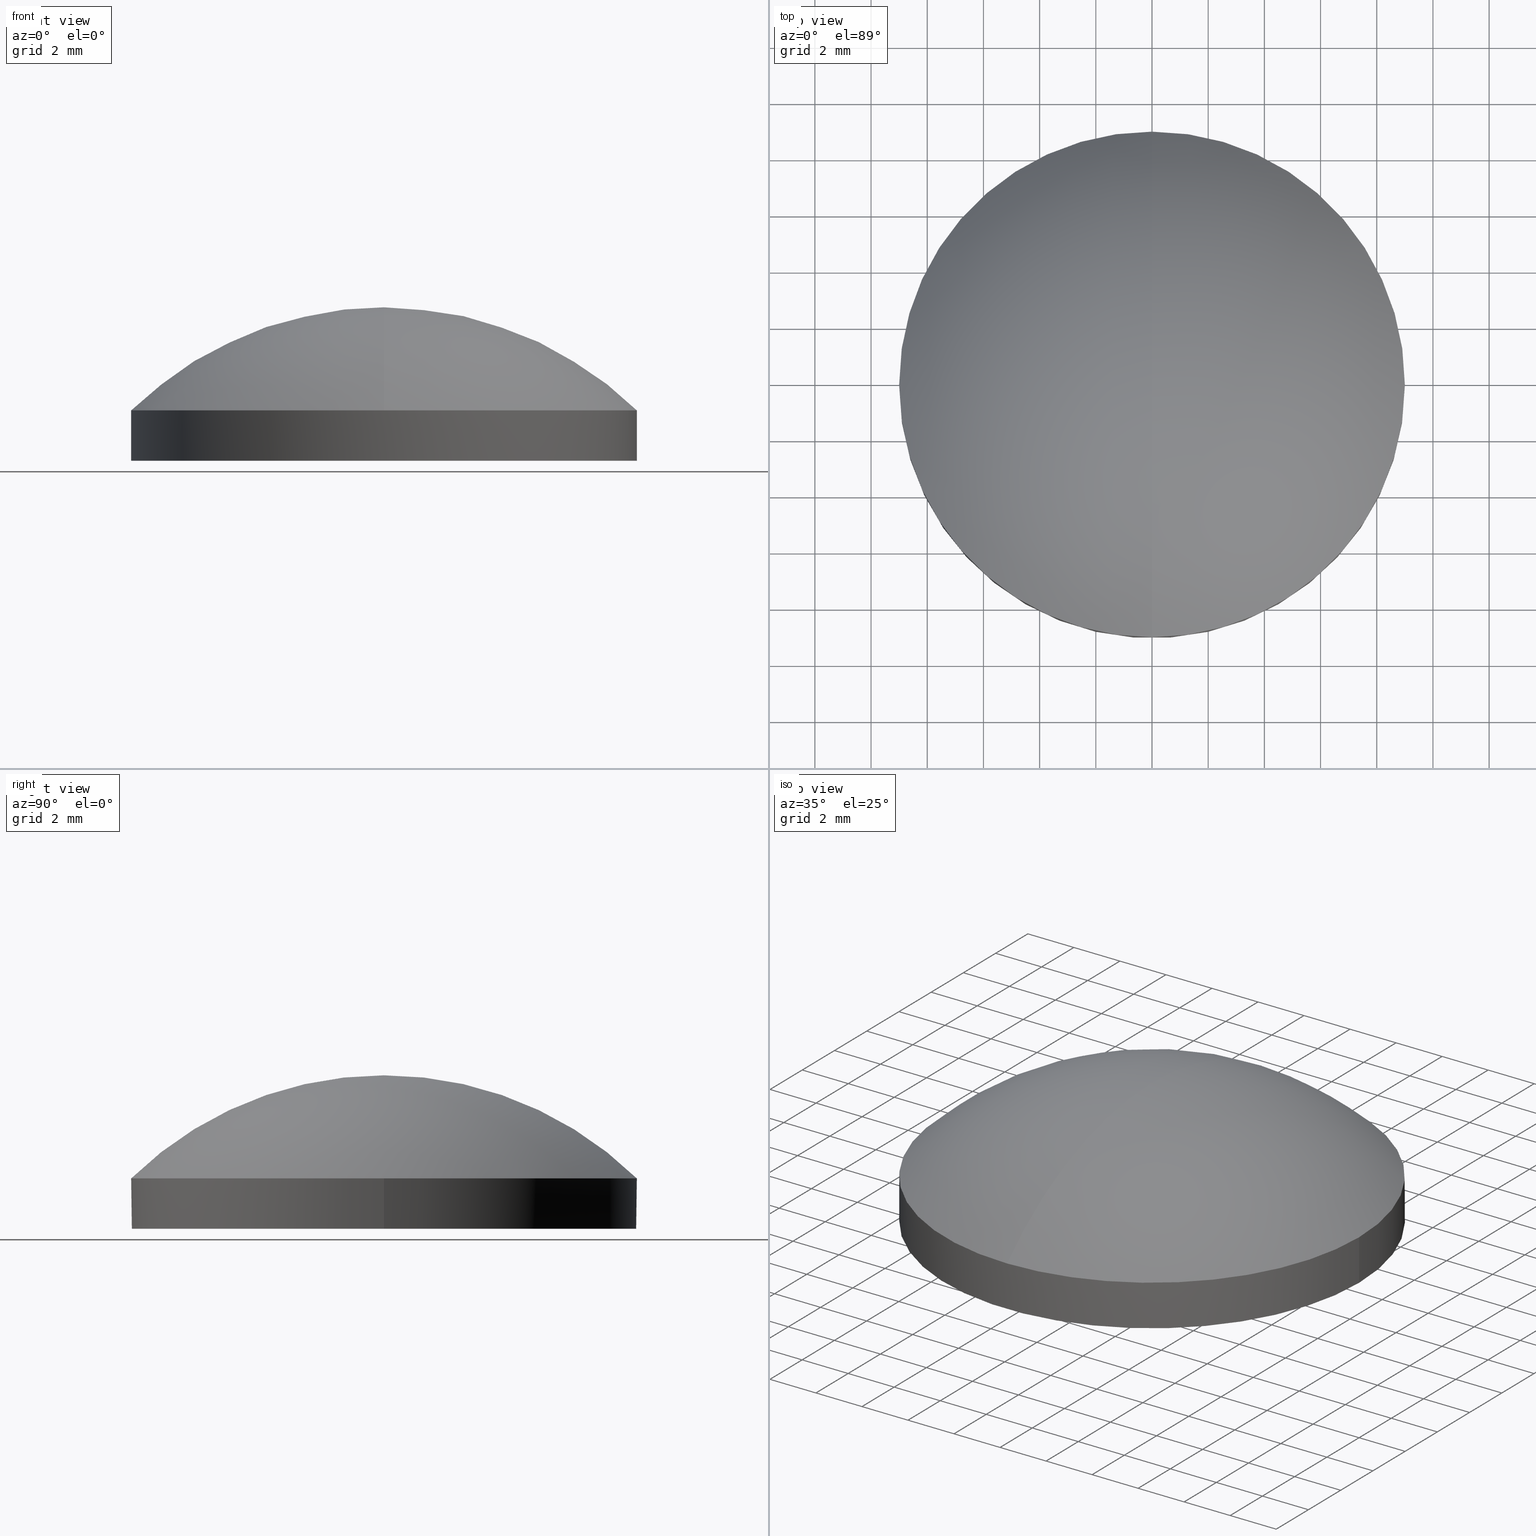
[diagram: canonical four-view strip — front | top / right | iso, engineering-drawing reading convention]
A machine part, canonical four-view strip (front | top / right | iso — engineering-drawing reading convention). The complete STEP part file that produces these views, byte-faithful:
ISO-10303-21;
HEADER;
FILE_DESCRIPTION (( 'STEP AP214' ),
    '1' );
FILE_NAME ('4485-E0W.STEP',
    '2009-12-21T17:06:16',
    ( ' ' ),
    ( ' ' ),
    'SwSTEP 2.0',
    'SolidWorks 2009',
    '' );
FILE_SCHEMA (( 'AUTOMOTIVE_DESIGN' ));
ENDSEC;

DATA;
#1 = VERTEX_POINT ( 'NONE', #91 ) ;
#2 = VERTEX_POINT ( 'NONE', #76 ) ;
#3 = EDGE_CURVE ( 'NONE', #23, #9, #68, .T. ) ;
#4 = VERTEX_POINT ( 'NONE', #93 ) ;
#5 = ORIENTED_EDGE ( 'NONE', *, *, #27, .F. ) ;
#6 = ORIENTED_EDGE ( 'NONE', *, *, #60, .T. ) ;
#7 = ORIENTED_EDGE ( 'NONE', *, *, #3, .F. ) ;
#8 = ADVANCED_FACE ( 'NONE', ( #81 ), #92, .T. ) ;
#9 = VERTEX_POINT ( 'NONE', #64 ) ;
#10 = EDGE_CURVE ( 'NONE', #2, #32, #63, .T. ) ;
#11 = EDGE_LOOP ( 'NONE', ( #18, #24, #6, #17 ) ) ;
#12 = ORIENTED_EDGE ( 'NONE', *, *, #13, .F. ) ;
#13 = EDGE_CURVE ( 'NONE', #2, #1, #100, .T. ) ;
#14 = ORIENTED_EDGE ( 'NONE', *, *, #3, .T. ) ;
#15 = EDGE_LOOP ( 'NONE', ( #42, #30 ) ) ;
#16 = ORIENTED_EDGE ( 'NONE', *, *, #25, .F. ) ;
#17 = ORIENTED_EDGE ( 'NONE', *, *, #21, .F. ) ;
#18 = ORIENTED_EDGE ( 'NONE', *, *, #27, .T. ) ;
#19 = EDGE_CURVE ( 'NONE', #32, #2, #82, .T. ) ;
#20 = ORIENTED_EDGE ( 'NONE', *, *, #21, .T. ) ;
#21 = EDGE_CURVE ( 'NONE', #9, #59, #124, .T. ) ;
#22 = EDGE_CURVE ( 'NONE', #1, #4, #126, .T. ) ;
#23 = VERTEX_POINT ( 'NONE', #110 ) ;
#24 = ORIENTED_EDGE ( 'NONE', *, *, #22, .T. ) ;
#25 = EDGE_CURVE ( 'NONE', #32, #23, #123, .T. ) ;
#26 = ORIENTED_EDGE ( 'NONE', *, *, #60, .F. ) ;
#27 = EDGE_CURVE ( 'NONE', #9, #1, #120, .T. ) ;
#28 = ORIENTED_EDGE ( 'NONE', *, *, #34, .T. ) ;
#29 = EDGE_LOOP ( 'NONE', ( #26, #28, #14, #20 ) ) ;
#30 = ORIENTED_EDGE ( 'NONE', *, *, #10, .F. ) ;
#31 = ORIENTED_EDGE ( 'NONE', *, *, #10, .T. ) ;
#32 = VERTEX_POINT ( 'NONE', #141 ) ;
#33 = ORIENTED_EDGE ( 'NONE', *, *, #13, .T. ) ;
#34 = EDGE_CURVE ( 'NONE', #4, #23, #128, .T. ) ;
#35 = ORIENTED_EDGE ( 'NONE', *, *, #22, .F. ) ;
#36 = ADVANCED_FACE ( 'NONE', ( #129 ), #161, .T. ) ;
#37 = CARTESIAN_POINT ( 'NONE',  ( 0.0000000000000000000, 0.0000000000000000000, -2.730000000000000000 ) ) ;
#38 = ADVANCED_FACE ( 'NONE', ( #165 ), #180, .F. ) ;
#39 = EDGE_LOOP ( 'NONE', ( #12, #31, #45, #40, #35 ) ) ;
#40 = ORIENTED_EDGE ( 'NONE', *, *, #34, .F. ) ;
#41 = CLOSED_SHELL ( 'NONE', ( #57, #8, #44, #36, #38 ) ) ;
#42 = ORIENTED_EDGE ( 'NONE', *, *, #19, .F. ) ;
#43 = AXIS2_PLACEMENT_3D ( 'NONE', #37, #48, #46 ) ;
#44 = ADVANCED_FACE ( 'NONE', ( #149 ), #212, .T. ) ;
#45 = ORIENTED_EDGE ( 'NONE', *, *, #25, .T. ) ;
#46 = DIRECTION ( 'NONE',  ( 1.000000000000000000, 0.0000000000000000000, 0.0000000000000000000 ) ) ;
#47 = UNCERTAINTY_MEASURE_WITH_UNIT (LENGTH_MEASURE( 1.000000000000000100E-005 ), #105, 'distance_accuracy_value', 'NONE');
#48 = DIRECTION ( 'NONE',  ( -0.0000000000000000000, -0.0000000000000000000, 1.000000000000000000 ) ) ;
#49 =( NAMED_UNIT ( * ) SI_UNIT ( $, .STERADIAN. ) SOLID_ANGLE_UNIT ( ) );
#50 = PRODUCT_RELATED_PRODUCT_CATEGORY ( 'part', '', ( #256 ) ) ;
#51 = PRODUCT_DEFINITION_FORMATION_WITH_SPECIFIED_SOURCE ( 'ANY', '', #256, .NOT_KNOWN. ) ;
#52 = PRODUCT_DEFINITION ( 'UNKNOWN', '', #51, #253 ) ;
#53 =( GEOMETRIC_REPRESENTATION_CONTEXT ( 3 ) GLOBAL_UNCERTAINTY_ASSIGNED_CONTEXT ( ( #47 ) ) GLOBAL_UNIT_ASSIGNED_CONTEXT ( ( #105, #108, #49 ) ) REPRESENTATION_CONTEXT ( 'NONE', 'WORKASPACE' ) );
#54 =( LENGTH_UNIT ( ) NAMED_UNIT ( * ) SI_UNIT ( .MILLI., .METRE. ) );
#55 = MANIFOLD_SOLID_BREP ( 'NONE', #41 ) ;
#56 = EDGE_LOOP ( 'NONE', ( #58, #33, #5, #7, #16 ) ) ;
#57 = ADVANCED_FACE ( 'NONE', ( #189 ), #235, .T. ) ;
#58 = ORIENTED_EDGE ( 'NONE', *, *, #19, .T. ) ;
#59 = VERTEX_POINT ( 'NONE', #216 ) ;
#60 = EDGE_CURVE ( 'NONE', #4, #59, #231, .T. ) ;
#61 =( NAMED_UNIT ( * ) PLANE_ANGLE_UNIT ( ) SI_UNIT ( $, .RADIAN. ) );
#62 = AXIS2_PLACEMENT_3D ( 'NONE', #73, #79, #78 ) ;
#63 = CIRCLE ( 'NONE', #99, 9.000000000000001800 ) ;
#64 = CARTESIAN_POINT ( 'NONE',  ( 0.0000000000000000000, 9.000000000000001800, -0.9401684798035601100 ) ) ;
#65 = DIRECTION ( 'NONE',  ( -0.0000000000000000000, -0.0000000000000000000, 1.000000000000000000 ) ) ;
#66 = CARTESIAN_POINT ( 'NONE',  ( -9.000000000000001800, 1.102145718440139700E-015, 4.308132045400366600 ) ) ;
#67 = DIRECTION ( 'NONE',  ( 1.000000000000000000, 0.0000000000000000000, 0.0000000000000000000 ) ) ;
#68 = CIRCLE ( 'NONE', #95, 9.000000000000001800 ) ;
#69 =( GEOMETRIC_REPRESENTATION_CONTEXT ( 3 ) GLOBAL_UNCERTAINTY_ASSIGNED_CONTEXT ( ( #97 ) ) GLOBAL_UNIT_ASSIGNED_CONTEXT ( ( #74, #90, #80 ) ) REPRESENTATION_CONTEXT ( 'NONE', 'WORKASPACE' ) );
#70 = SURFACE_SIDE_STYLE ('',( #75 ) ) ;
#71 = FILL_AREA_STYLE ('',( #96 ) ) ;
#72 = MECHANICAL_DESIGN_GEOMETRIC_PRESENTATION_REPRESENTATION (  '', ( #84 ), #69 ) ;
#73 = CARTESIAN_POINT ( 'NONE',  ( 0.0000000000000000000, 0.0000000000000000000, -10.14000000000000100 ) ) ;
#74 =( LENGTH_UNIT ( ) NAMED_UNIT ( * ) SI_UNIT ( .MILLI., .METRE. ) );
#75 = SURFACE_STYLE_FILL_AREA ( #71 ) ;
#76 = CARTESIAN_POINT ( 'NONE',  ( -9.000000000000001800, 1.102145718440139700E-015, -2.730000000000000000 ) ) ;
#77 = SURFACE_STYLE_USAGE ( .BOTH. , #70 ) ;
#78 = DIRECTION ( 'NONE',  ( 0.0000000000000000000, 1.000000000000000000, 0.0000000000000000000 ) ) ;
#79 = DIRECTION ( 'NONE',  ( -1.000000000000000000, 0.0000000000000000000, 0.0000000000000000000 ) ) ;
#80 =( NAMED_UNIT ( * ) SI_UNIT ( $, .STERADIAN. ) SOLID_ANGLE_UNIT ( ) );
#81 = FACE_OUTER_BOUND ( 'NONE', #11, .T. ) ;
#82 = CIRCLE ( 'NONE', #43, 9.000000000000001800 ) ;
#83 = VECTOR ( 'NONE', #65, 1000.000000000000000 ) ;
#84 = STYLED_ITEM ( 'NONE', ( #86 ), #8 ) ;
#85 = COLOUR_RGB ( '',0.9568627450980391500, 0.9490196078431372100, 0.9607843137254902200 ) ;
#86 = PRESENTATION_STYLE_ASSIGNMENT (( #77 ) ) ;
#87 = CARTESIAN_POINT ( 'NONE',  ( 0.0000000000000000000, 0.0000000000000000000, -0.9401684798035587800 ) ) ;
#88 = DIRECTION ( 'NONE',  ( 1.000000000000000000, 0.0000000000000000000, 0.0000000000000000000 ) ) ;
#89 = PRESENTATION_LAYER_ASSIGNMENT (  '', '', ( #84 ) ) ;
#90 =( NAMED_UNIT ( * ) PLANE_ANGLE_UNIT ( ) SI_UNIT ( $, .RADIAN. ) );
#91 = CARTESIAN_POINT ( 'NONE',  ( -9.000000000000001800, 1.102145718440139700E-015, -0.9401684798035587800 ) ) ;
#92 = SPHERICAL_SURFACE ( 'NONE', #62, 12.86999999999999900 ) ;
#93 = CARTESIAN_POINT ( 'NONE',  ( -1.102145718440139700E-015, -9.000000000000001800, -0.9401684798035601100 ) ) ;
#94 =( NAMED_UNIT ( * ) SI_UNIT ( $, .STERADIAN. ) SOLID_ANGLE_UNIT ( ) );
#95 = AXIS2_PLACEMENT_3D ( 'NONE', #87, #101, #88 ) ;
#96 = FILL_AREA_STYLE_COLOUR ( '', #85 ) ;
#97 = UNCERTAINTY_MEASURE_WITH_UNIT (LENGTH_MEASURE( 1.000000000000000100E-005 ), #74, 'distance_accuracy_value', 'NONE');
#98 = DIRECTION ( 'NONE',  ( -0.0000000000000000000, -0.0000000000000000000, 1.000000000000000000 ) ) ;
#99 = AXIS2_PLACEMENT_3D ( 'NONE', #102, #98, #67 ) ;
#100 = LINE ( 'NONE', #66, #83 ) ;
#101 = DIRECTION ( 'NONE',  ( -0.0000000000000000000, -0.0000000000000000000, 1.000000000000000000 ) ) ;
#102 = CARTESIAN_POINT ( 'NONE',  ( 0.0000000000000000000, 0.0000000000000000000, -2.730000000000000000 ) ) ;
#103 = DIRECTION ( 'NONE',  ( 1.000000000000000000, 0.0000000000000000000, 0.0000000000000000000 ) ) ;
#104 = DIRECTION ( 'NONE',  ( 0.0000000000000000000, 0.0000000000000000000, -1.000000000000000000 ) ) ;
#105 =( LENGTH_UNIT ( ) NAMED_UNIT ( * ) SI_UNIT ( .MILLI., .METRE. ) );
#106 = DIRECTION ( 'NONE',  ( -0.0000000000000000000, -0.0000000000000000000, 1.000000000000000000 ) ) ;
#107 = CARTESIAN_POINT ( 'NONE',  ( 0.0000000000000000000, 0.0000000000000000000, -10.14000000000000100 ) ) ;
#108 =( NAMED_UNIT ( * ) PLANE_ANGLE_UNIT ( ) SI_UNIT ( $, .RADIAN. ) );
#109 = CARTESIAN_POINT ( 'NONE',  ( 0.0000000000000000000, 0.0000000000000000000, -0.9401684798035587800 ) ) ;
#110 = CARTESIAN_POINT ( 'NONE',  ( 9.000000000000001800, 0.0000000000000000000, -0.9401684798035587800 ) ) ;
#111 = DIRECTION ( 'NONE',  ( 1.000000000000000000, 0.0000000000000000000, 0.0000000000000000000 ) ) ;
#112 = DIRECTION ( 'NONE',  ( 1.000000000000000000, 0.0000000000000000000, 0.0000000000000000000 ) ) ;
#113 = DIRECTION ( 'NONE',  ( -0.0000000000000000000, -0.0000000000000000000, 1.000000000000000000 ) ) ;
#114 = FILL_AREA_STYLE_COLOUR ( '', #139 ) ;
#115 = DIRECTION ( 'NONE',  ( 1.000000000000000000, 0.0000000000000000000, 0.0000000000000000000 ) ) ;
#116 = DIRECTION ( 'NONE',  ( -0.0000000000000000000, -0.0000000000000000000, 1.000000000000000000 ) ) ;
#117 = CARTESIAN_POINT ( 'NONE',  ( 0.0000000000000000000, 0.0000000000000000000, -0.9401684798035587800 ) ) ;
#118 = CARTESIAN_POINT ( 'NONE',  ( 0.0000000000000000000, 0.0000000000000000000, -0.9401684798035587800 ) ) ;
#119 = AXIS2_PLACEMENT_3D ( 'NONE', #118, #113, #112 ) ;
#120 = CIRCLE ( 'NONE', #119, 9.000000000000001800 ) ;
#121 = VECTOR ( 'NONE', #106, 1000.000000000000000 ) ;
#122 = CARTESIAN_POINT ( 'NONE',  ( 9.000000000000001800, 0.0000000000000000000, 4.308132045400366600 ) ) ;
#123 = LINE ( 'NONE', #122, #121 ) ;
#124 = CIRCLE ( 'NONE', #125, 12.86999999999999900 ) ;
#125 = AXIS2_PLACEMENT_3D ( 'NONE', #107, #103, #104 ) ;
#126 = CIRCLE ( 'NONE', #140, 9.000000000000001800 ) ;
#127 = AXIS2_PLACEMENT_3D ( 'NONE', #117, #116, #115 ) ;
#128 = CIRCLE ( 'NONE', #127, 9.000000000000001800 ) ;
#129 = FACE_OUTER_BOUND ( 'NONE', #39, .T. ) ;
#130 = DIRECTION ( 'NONE',  ( -0.0000000000000000000, -0.0000000000000000000, 1.000000000000000000 ) ) ;
#131 = MECHANICAL_DESIGN_GEOMETRIC_PRESENTATION_REPRESENTATION (  '', ( #133 ), #53 ) ;
#132 = PRESENTATION_LAYER_ASSIGNMENT (  '', '', ( #133 ) ) ;
#133 = STYLED_ITEM ( 'NONE', ( #134 ), #36 ) ;
#134 = PRESENTATION_STYLE_ASSIGNMENT (( #135 ) ) ;
#135 = SURFACE_STYLE_USAGE ( .BOTH. , #136 ) ;
#136 = SURFACE_SIDE_STYLE ('',( #137 ) ) ;
#137 = SURFACE_STYLE_FILL_AREA ( #138 ) ;
#138 = FILL_AREA_STYLE ('',( #114 ) ) ;
#139 = COLOUR_RGB ( '',0.9568627450980391500, 0.9490196078431372100, 0.9607843137254902200 ) ;
#140 = AXIS2_PLACEMENT_3D ( 'NONE', #109, #130, #111 ) ;
#141 = CARTESIAN_POINT ( 'NONE',  ( 9.000000000000001800, 0.0000000000000000000, -2.730000000000000000 ) ) ;
#142 = DIRECTION ( 'NONE',  ( -0.0000000000000000000, -0.0000000000000000000, 1.000000000000000000 ) ) ;
#143 = MECHANICAL_DESIGN_GEOMETRIC_PRESENTATION_REPRESENTATION (  '', ( #172 ), #160 ) ;
#144 =( NAMED_UNIT ( * ) SI_UNIT ( $, .STERADIAN. ) SOLID_ANGLE_UNIT ( ) );
#145 =( NAMED_UNIT ( * ) PLANE_ANGLE_UNIT ( ) SI_UNIT ( $, .RADIAN. ) );
#146 =( GEOMETRIC_REPRESENTATION_CONTEXT ( 3 ) GLOBAL_UNCERTAINTY_ASSIGNED_CONTEXT ( ( #159 ) ) GLOBAL_UNIT_ASSIGNED_CONTEXT ( ( #152, #171, #154 ) ) REPRESENTATION_CONTEXT ( 'NONE', 'WORKASPACE' ) );
#147 = AXIS2_PLACEMENT_3D ( 'NONE', #153, #184, #183 ) ;
#148 = COLOUR_RGB ( '',0.9568627450980391500, 0.9490196078431372100, 0.9607843137254902200 ) ;
#149 = FACE_OUTER_BOUND ( 'NONE', #29, .T. ) ;
#150 = PRESENTATION_STYLE_ASSIGNMENT (( #164 ) ) ;
#151 = FILL_AREA_STYLE ('',( #167 ) ) ;
#152 =( LENGTH_UNIT ( ) NAMED_UNIT ( * ) SI_UNIT ( .MILLI., .METRE. ) );
#153 = CARTESIAN_POINT ( 'NONE',  ( 0.0000000000000000000, 1.002985728501682100E-015, -2.730000000000000000 ) ) ;
#154 =( NAMED_UNIT ( * ) SI_UNIT ( $, .STERADIAN. ) SOLID_ANGLE_UNIT ( ) );
#155 = MECHANICAL_DESIGN_GEOMETRIC_PRESENTATION_REPRESENTATION (  '', ( #168 ), #146 ) ;
#156 = PRESENTATION_LAYER_ASSIGNMENT (  '', '', ( #168 ) ) ;
#157 = PRESENTATION_LAYER_ASSIGNMENT (  '', '', ( #172 ) ) ;
#158 =( NAMED_UNIT ( * ) PLANE_ANGLE_UNIT ( ) SI_UNIT ( $, .RADIAN. ) );
#159 = UNCERTAINTY_MEASURE_WITH_UNIT (LENGTH_MEASURE( 1.000000000000000100E-005 ), #152, 'distance_accuracy_value', 'NONE');
#160 =( GEOMETRIC_REPRESENTATION_CONTEXT ( 3 ) GLOBAL_UNCERTAINTY_ASSIGNED_CONTEXT ( ( #182 ) ) GLOBAL_UNIT_ASSIGNED_CONTEXT ( ( #181, #158, #144 ) ) REPRESENTATION_CONTEXT ( 'NONE', 'WORKASPACE' ) );
#161 = CYLINDRICAL_SURFACE ( 'NONE', #173, 9.000000000000001800 ) ;
#162 = COLOUR_RGB ( '',0.9568627450980391500, 0.9490196078431372100, 0.9607843137254902200 ) ;
#163 = SURFACE_STYLE_FILL_AREA ( #151 ) ;
#164 = SURFACE_STYLE_USAGE ( .BOTH. , #175 ) ;
#165 = FACE_OUTER_BOUND ( 'NONE', #15, .T. ) ;
#166 = CARTESIAN_POINT ( 'NONE',  ( 0.0000000000000000000, 0.0000000000000000000, 4.308132045400366600 ) ) ;
#167 = FILL_AREA_STYLE_COLOUR ( '', #162 ) ;
#168 = STYLED_ITEM ( 'NONE', ( #169 ), #44 ) ;
#169 = PRESENTATION_STYLE_ASSIGNMENT (( #170 ) ) ;
#170 = SURFACE_STYLE_USAGE ( .BOTH. , #176 ) ;
#171 =( NAMED_UNIT ( * ) PLANE_ANGLE_UNIT ( ) SI_UNIT ( $, .RADIAN. ) );
#172 = STYLED_ITEM ( 'NONE', ( #150 ), #38 ) ;
#173 = AXIS2_PLACEMENT_3D ( 'NONE', #166, #142, #174 ) ;
#174 = DIRECTION ( 'NONE',  ( 1.000000000000000000, 0.0000000000000000000, 0.0000000000000000000 ) ) ;
#175 = SURFACE_SIDE_STYLE ('',( #163 ) ) ;
#176 = SURFACE_SIDE_STYLE ('',( #177 ) ) ;
#177 = SURFACE_STYLE_FILL_AREA ( #178 ) ;
#178 = FILL_AREA_STYLE ('',( #179 ) ) ;
#179 = FILL_AREA_STYLE_COLOUR ( '', #148 ) ;
#180 = PLANE ( 'NONE',  #147 ) ;
#181 =( LENGTH_UNIT ( ) NAMED_UNIT ( * ) SI_UNIT ( .MILLI., .METRE. ) );
#182 = UNCERTAINTY_MEASURE_WITH_UNIT (LENGTH_MEASURE( 1.000000000000000100E-005 ), #181, 'distance_accuracy_value', 'NONE');
#183 = DIRECTION ( 'NONE',  ( 1.000000000000000000, 0.0000000000000000000, 0.0000000000000000000 ) ) ;
#184 = DIRECTION ( 'NONE',  ( 0.0000000000000000000, -0.0000000000000000000, 1.000000000000000000 ) ) ;
#185 = SURFACE_STYLE_FILL_AREA ( #186 ) ;
#186 = FILL_AREA_STYLE ('',( #187 ) ) ;
#187 = FILL_AREA_STYLE_COLOUR ( '', #188 ) ;
#188 = COLOUR_RGB ( '',0.9568627450980391500, 0.9490196078431372100, 0.9607843137254902200 ) ;
#189 = FACE_OUTER_BOUND ( 'NONE', #56, .T. ) ;
#190 = MECHANICAL_DESIGN_GEOMETRIC_PRESENTATION_REPRESENTATION (  '', ( #192 ), #236 ) ;
#191 = PRESENTATION_LAYER_ASSIGNMENT (  '', '', ( #192 ) ) ;
#192 = STYLED_ITEM ( 'NONE', ( #193 ), #57 ) ;
#193 = PRESENTATION_STYLE_ASSIGNMENT (( #194 ) ) ;
#194 = SURFACE_STYLE_USAGE ( .BOTH. , #195 ) ;
#195 = SURFACE_SIDE_STYLE ('',( #185 ) ) ;
#196 = AXIS2_PLACEMENT_3D ( 'NONE', #204, #214, #199 ) ;
#197 = PRESENTATION_STYLE_ASSIGNMENT (( #198 ) ) ;
#198 = SURFACE_STYLE_USAGE ( .BOTH. , #203 ) ;
#199 = DIRECTION ( 'NONE',  ( 0.0000000000000000000, 1.000000000000000000, 0.0000000000000000000 ) ) ;
#200 =( NAMED_UNIT ( * ) SI_UNIT ( $, .STERADIAN. ) SOLID_ANGLE_UNIT ( ) );
#201 =( LENGTH_UNIT ( ) NAMED_UNIT ( * ) SI_UNIT ( .MILLI., .METRE. ) );
#202 = SURFACE_STYLE_FILL_AREA ( #210 ) ;
#203 = SURFACE_SIDE_STYLE ('',( #202 ) ) ;
#204 = CARTESIAN_POINT ( 'NONE',  ( 0.0000000000000000000, 0.0000000000000000000, -10.14000000000000100 ) ) ;
#205 = UNCERTAINTY_MEASURE_WITH_UNIT (LENGTH_MEASURE( 1.000000000000000100E-005 ), #201, 'distance_accuracy_value', 'NONE');
#206 = MECHANICAL_DESIGN_GEOMETRIC_PRESENTATION_REPRESENTATION (  '', ( #213 ), #209 ) ;
#207 = PRESENTATION_LAYER_ASSIGNMENT (  '', '', ( #213 ) ) ;
#208 =( NAMED_UNIT ( * ) PLANE_ANGLE_UNIT ( ) SI_UNIT ( $, .RADIAN. ) );
#209 =( GEOMETRIC_REPRESENTATION_CONTEXT ( 3 ) GLOBAL_UNCERTAINTY_ASSIGNED_CONTEXT ( ( #205 ) ) GLOBAL_UNIT_ASSIGNED_CONTEXT ( ( #201, #208, #200 ) ) REPRESENTATION_CONTEXT ( 'NONE', 'WORKASPACE' ) );
#210 = FILL_AREA_STYLE ('',( #211 ) ) ;
#211 = FILL_AREA_STYLE_COLOUR ( '', #215 ) ;
#212 = SPHERICAL_SURFACE ( 'NONE', #196, 12.86999999999999900 ) ;
#213 = STYLED_ITEM ( 'NONE', ( #197 ), #55 ) ;
#214 = DIRECTION ( 'NONE',  ( -1.000000000000000000, 0.0000000000000000000, 0.0000000000000000000 ) ) ;
#215 = COLOUR_RGB ( '',0.7960784313725489700, 0.8235294117647058400, 0.9372549019607843100 ) ;
#216 = CARTESIAN_POINT ( 'NONE',  ( 0.0000000000000000000, 7.880341886846997100E-016, 2.730000000000000000 ) ) ;
#217 =( LENGTH_UNIT ( ) NAMED_UNIT ( * ) SI_UNIT ( .MILLI., .METRE. ) );
#218 = DIRECTION ( 'NONE',  ( -0.0000000000000000000, -0.0000000000000000000, 1.000000000000000000 ) ) ;
#219 = CARTESIAN_POINT ( 'NONE',  ( 0.0000000000000000000, 0.0000000000000000000, 4.308132045400366600 ) ) ;
#220 =( GEOMETRIC_REPRESENTATION_CONTEXT ( 3 ) GLOBAL_UNCERTAINTY_ASSIGNED_CONTEXT ( ( #245 ) ) GLOBAL_UNIT_ASSIGNED_CONTEXT ( ( #217, #243, #232 ) ) REPRESENTATION_CONTEXT ( 'NONE', 'WORKASPACE' ) );
#221 = DIRECTION ( 'NONE',  ( -1.000000000000000000, 1.224606353822377300E-016, 0.0000000000000000000 ) ) ;
#222 = CARTESIAN_POINT ( 'NONE',  ( 0.0000000000000000000, 0.0000000000000000000, -10.14000000000000100 ) ) ;
#223 = AXIS2_PLACEMENT_3D ( 'NONE', #222, #221, #247 ) ;
#224 = PRESENTATION_STYLE_ASSIGNMENT (( #225 ) ) ;
#225 = SURFACE_STYLE_USAGE ( .BOTH. , #226 ) ;
#226 = SURFACE_SIDE_STYLE ('',( #227 ) ) ;
#227 = SURFACE_STYLE_FILL_AREA ( #228 ) ;
#228 = FILL_AREA_STYLE ('',( #229 ) ) ;
#229 = FILL_AREA_STYLE_COLOUR ( '', #246 ) ;
#230 = AXIS2_PLACEMENT_3D ( 'NONE', #219, #218, #237 ) ;
#231 = CIRCLE ( 'NONE', #223, 12.86999999999999900 ) ;
#232 =( NAMED_UNIT ( * ) SI_UNIT ( $, .STERADIAN. ) SOLID_ANGLE_UNIT ( ) );
#233 = SHAPE_DEFINITION_REPRESENTATION ( #238, #239 ) ;
#234 =( LENGTH_UNIT ( ) NAMED_UNIT ( * ) SI_UNIT ( .MILLI., .METRE. ) );
#235 = CYLINDRICAL_SURFACE ( 'NONE', #230, 9.000000000000001800 ) ;
#236 =( GEOMETRIC_REPRESENTATION_CONTEXT ( 3 ) GLOBAL_UNCERTAINTY_ASSIGNED_CONTEXT ( ( #248 ) ) GLOBAL_UNIT_ASSIGNED_CONTEXT ( ( #54, #145, #244 ) ) REPRESENTATION_CONTEXT ( 'NONE', 'WORKASPACE' ) );
#237 = DIRECTION ( 'NONE',  ( 1.000000000000000000, 0.0000000000000000000, 0.0000000000000000000 ) ) ;
#238 = PRODUCT_DEFINITION_SHAPE ( 'NONE', 'NONE',  #52 ) ;
#239 = ADVANCED_BREP_SHAPE_REPRESENTATION ( '4485-E0W', ( #55, #258 ), #220 ) ;
#240 = MECHANICAL_DESIGN_GEOMETRIC_PRESENTATION_REPRESENTATION (  '', ( #242 ), #251 ) ;
#241 = PRESENTATION_LAYER_ASSIGNMENT (  '', '', ( #242 ) ) ;
#242 = STYLED_ITEM ( 'NONE', ( #224 ), #239 ) ;
#243 =( NAMED_UNIT ( * ) PLANE_ANGLE_UNIT ( ) SI_UNIT ( $, .RADIAN. ) );
#244 =( NAMED_UNIT ( * ) SI_UNIT ( $, .STERADIAN. ) SOLID_ANGLE_UNIT ( ) );
#245 = UNCERTAINTY_MEASURE_WITH_UNIT (LENGTH_MEASURE( 1.000000000000000100E-005 ), #217, 'distance_accuracy_value', 'NONE');
#246 = COLOUR_RGB ( '',0.7960784313725489700, 0.8235294117647058400, 0.9372549019607843100 ) ;
#247 = DIRECTION ( 'NONE',  ( -1.224606353822377300E-016, -1.000000000000000000, 0.0000000000000000000 ) ) ;
#248 = UNCERTAINTY_MEASURE_WITH_UNIT (LENGTH_MEASURE( 1.000000000000000100E-005 ), #54, 'distance_accuracy_value', 'NONE');
#249 = APPLICATION_CONTEXT ( 'automotive_design' ) ;
#250 = DIRECTION ( 'NONE',  ( 0.0000000000000000000, 0.0000000000000000000, 1.000000000000000000 ) ) ;
#251 =( GEOMETRIC_REPRESENTATION_CONTEXT ( 3 ) GLOBAL_UNCERTAINTY_ASSIGNED_CONTEXT ( ( #252 ) ) GLOBAL_UNIT_ASSIGNED_CONTEXT ( ( #234, #61, #94 ) ) REPRESENTATION_CONTEXT ( 'NONE', 'WORKASPACE' ) );
#252 = UNCERTAINTY_MEASURE_WITH_UNIT (LENGTH_MEASURE( 1.000000000000000100E-005 ), #234, 'distance_accuracy_value', 'NONE');
#253 = PRODUCT_DEFINITION_CONTEXT ( 'detailed design', #255, 'design' ) ;
#254 = APPLICATION_PROTOCOL_DEFINITION ( 'draft international standard', 'automotive_design', 1998, #255 ) ;
#255 = APPLICATION_CONTEXT ( 'automotive_design' ) ;
#256 = PRODUCT ( '4485-E0W', '4485-E0W', '', ( #257 ) ) ;
#257 = PRODUCT_CONTEXT ( 'NONE', #249, 'mechanical' ) ;
#258 = AXIS2_PLACEMENT_3D ( 'NONE', #259, #250, #261 ) ;
#259 = CARTESIAN_POINT ( 'NONE',  ( 0.0000000000000000000, 0.0000000000000000000, 0.0000000000000000000 ) ) ;
#260 = APPLICATION_PROTOCOL_DEFINITION ( 'draft international standard', 'automotive_design', 1998, #249 ) ;
#261 = DIRECTION ( 'NONE',  ( 1.000000000000000000, 0.0000000000000000000, 0.0000000000000000000 ) ) ;
ENDSEC;
END-ISO-10303-21;
